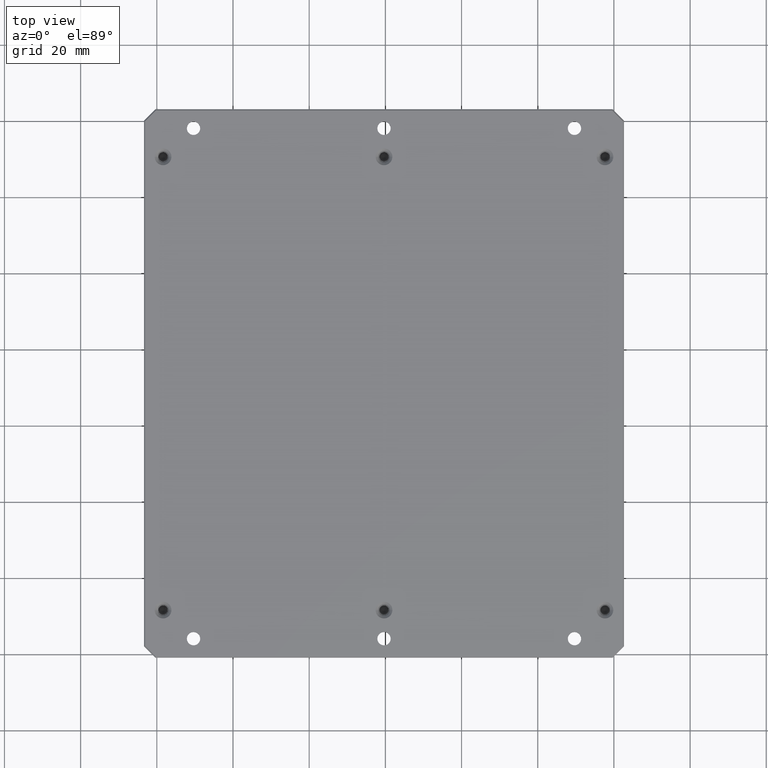
[diagram: clean part render]
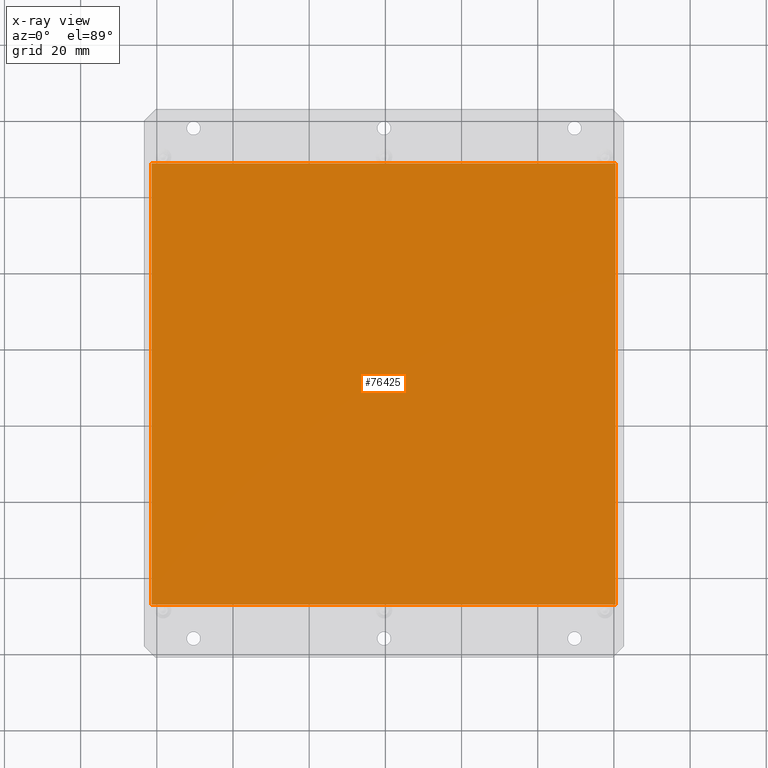
[diagram: x-ray — body ghosted, one internal face saturated and labeled with its STEP entity id]
A machine part, top view, then the same camera in x-ray: the body is ghosted and one INTERNAL B-rep face — a face not visible from any outside direction — is saturated and labeled: STEP entity #76425.
In plain terms, the highlighted planar face has unit normal (0, 0, 1).
Its self-contained STEP definition (entity closure, byte-faithful):
#1092 = VECTOR ( 'NONE', #21395, 1000.000000000000000 ) ;
#3625 = ORIENTED_EDGE ( 'NONE', *, *, #45402, .T. ) ;
#5916 = CARTESIAN_POINT ( 'NONE',  ( -61.35509736540659300, -47.11034746086289700, 10.99999999998362900 ) ) ;
#8758 = CARTESIAN_POINT ( 'NONE',  ( 60.44490263459341200, -47.11034746086287600, 10.99999999998362900 ) ) ;
#8760 = PLANE ( 'NONE',  #82157 ) ;
#10795 = CARTESIAN_POINT ( 'NONE',  ( -61.35509736540662100, 68.68965253913710000, 10.99999999998362900 ) ) ;
#13193 = EDGE_CURVE ( 'NONE', #34013, #70163, #16573, .T. ) ;
#14657 = LINE ( 'NONE', #58706, #72138 ) ;
#16160 = CARTESIAN_POINT ( 'NONE',  ( -61.35509736540659300, -47.11034746086289700, 10.99999999998362900 ) ) ;
#16573 = LINE ( 'NONE', #62463, #1092 ) ;
#21395 = DIRECTION ( 'NONE',  ( -2.220446049250312600E-016, 1.000000000000000000, 0.0000000000000000000 ) ) ;
#22035 = DIRECTION ( 'NONE',  ( -2.220446049250312600E-016, 1.000000000000000000, 0.0000000000000000000 ) ) ;
#22138 = VECTOR ( 'NONE', #24971, 1000.000000000000000 ) ;
#24191 = VERTEX_POINT ( 'NONE', #16160 ) ;
#24971 = DIRECTION ( 'NONE',  ( -1.000000000000000000, -2.220446049250312600E-016, 0.0000000000000000000 ) ) ;
#26019 = DIRECTION ( 'NONE',  ( 1.000000000000000000, 2.220446049250312600E-016, -0.0000000000000000000 ) ) ;
#29420 = ORIENTED_EDGE ( 'NONE', *, *, #37770, .T. ) ;
#32048 = CARTESIAN_POINT ( 'NONE',  ( -61.35509736540662100, 68.68965253913710000, 10.99999999998362900 ) ) ;
#34013 = VERTEX_POINT ( 'NONE', #8758 ) ;
#34750 = VECTOR ( 'NONE', #26019, 1000.000000000000000 ) ;
#37770 = EDGE_CURVE ( 'NONE', #89595, #24191, #14657, .T. ) ;
#40024 = FACE_OUTER_BOUND ( 'NONE', #42724, .T. ) ;
#41737 = ORIENTED_EDGE ( 'NONE', *, *, #13193, .T. ) ;
#42724 = EDGE_LOOP ( 'NONE', ( #3625, #29420, #68738, #41737 ) ) ;
#45402 = EDGE_CURVE ( 'NONE', #70163, #89595, #62991, .T. ) ;
#58127 = DIRECTION ( 'NONE',  ( 0.0000000000000000000, 0.0000000000000000000, 1.000000000000000000 ) ) ;
#58706 = CARTESIAN_POINT ( 'NONE',  ( -61.35509736540659300, -47.11034746086287600, 10.99999999998362900 ) ) ;
#59172 = CARTESIAN_POINT ( 'NONE',  ( 60.44490263459338300, 68.68965253913712800, 10.99999999998362900 ) ) ;
#62463 = CARTESIAN_POINT ( 'NONE',  ( 60.44490263459341200, -47.11034746086284700, 10.99999999998362900 ) ) ;
#62991 = LINE ( 'NONE', #10795, #22138 ) ;
#64354 = CARTESIAN_POINT ( 'NONE',  ( -61.35509736540659300, -47.11034746086287600, 10.99999999998362900 ) ) ;
#64608 = EDGE_CURVE ( 'NONE', #24191, #34013, #74657, .T. ) ;
#68738 = ORIENTED_EDGE ( 'NONE', *, *, #64608, .T. ) ;
#70163 = VERTEX_POINT ( 'NONE', #59172 ) ;
#72138 = VECTOR ( 'NONE', #80023, 1000.000000000000000 ) ;
#74657 = LINE ( 'NONE', #5916, #34750 ) ;
#76425 = ADVANCED_FACE ( 'NONE', ( #40024 ), #8760, .T. ) ;
#80023 = DIRECTION ( 'NONE',  ( 2.220446049250312600E-016, -1.000000000000000000, -0.0000000000000000000 ) ) ;
#82157 = AXIS2_PLACEMENT_3D ( 'NONE', #64354, #58127, #22035 ) ;
#89595 = VERTEX_POINT ( 'NONE', #32048 ) ;